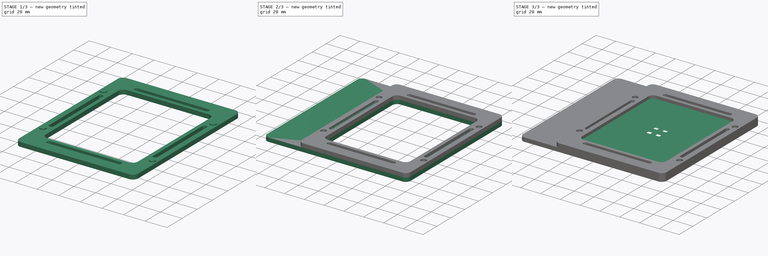
[diagram: build sequence overview — one tinted view per stage of 3, left to right]
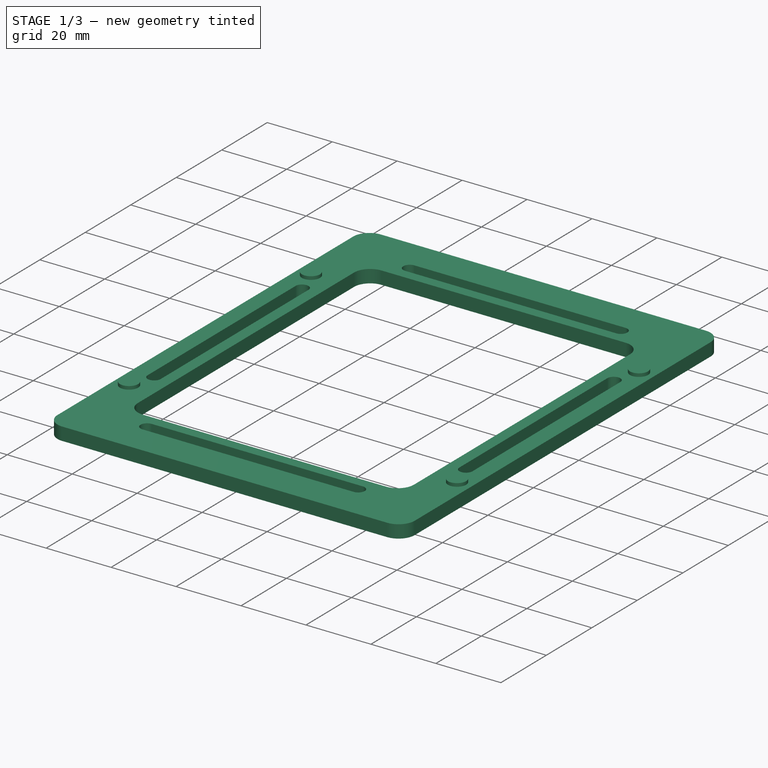
[diagram: stage 1 of 3 — iso view after this stage's code; geometry added in this stage tinted green]
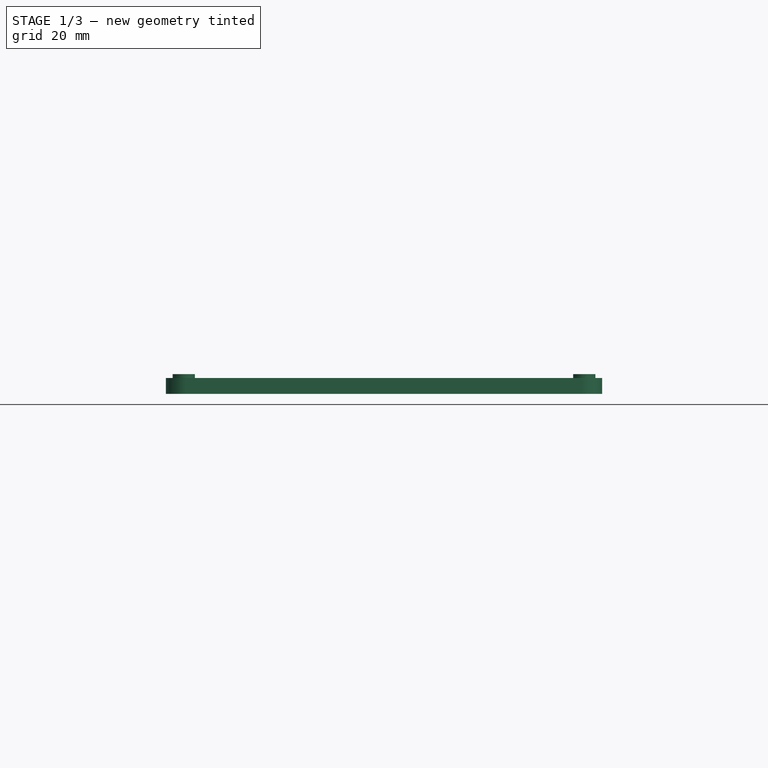
[diagram: stage 1 of 3 — front view after this stage's code; geometry added in this stage tinted green]
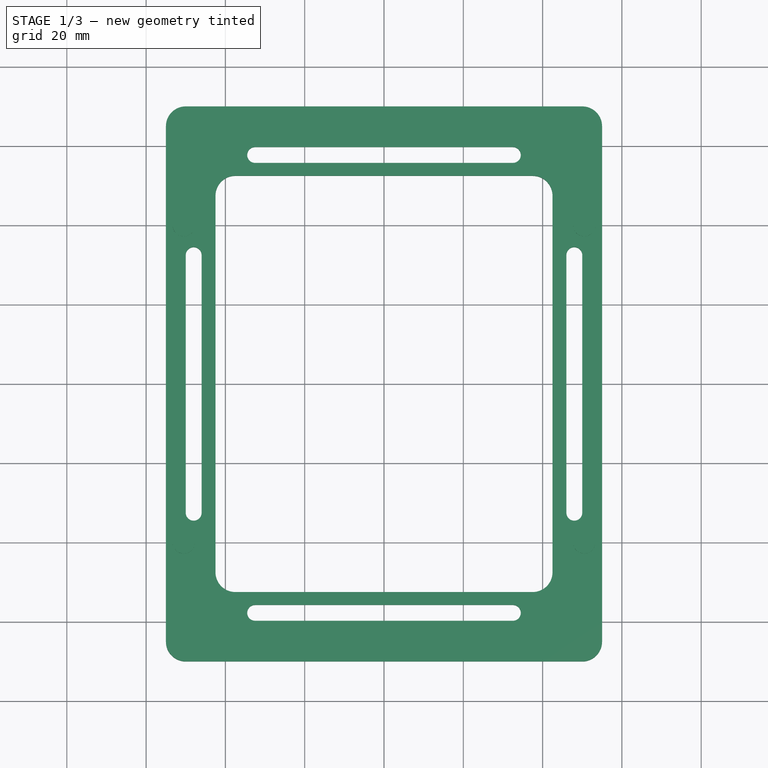
[diagram: stage 1 of 3 — top view after this stage's code; geometry added in this stage tinted green]
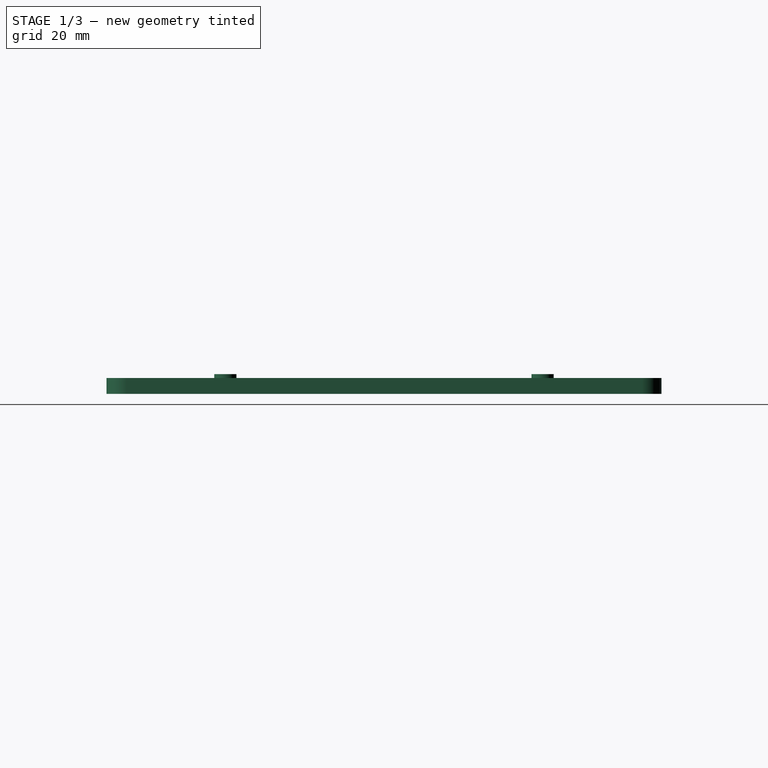
[diagram: stage 1 of 3 — right view after this stage's code; geometry added in this stage tinted green]
FCSTD DOCUMENT  (FreeCAD 0.17R13190 (Git))
Label: frame-v5.1
License: All rights reserved
LicenseURL: http://en.wikipedia.org/wiki/All_rights_reserved
objects: Sketcher::SketchObject×5, Part::Extrusion×5, Part::MultiFuse×1, Part::Cut×1
note: 12 computed .brp shape members not serialized (recipe doc carries the construction recipe); baked Part::Feature solids carry a one-line shape summary decoded from their .brp

FEATURE [Sketcher::SketchObject] Sketch002
  sketch-geometry (28):
    g0: LineSegment [constr] StartX=-47.125 StartY=56.75 StartZ=0 EndX=47.125 EndY=56.75 EndZ=0
    g1: LineSegment [constr] StartX=47.125 StartY=56.75 StartZ=0 EndX=47.125 EndY=-56.75 EndZ=0
    g2: LineSegment [constr] StartX=47.125 StartY=-56.75 StartZ=0 EndX=-47.125 EndY=-56.75 EndZ=0
    g3: LineSegment [constr] StartX=-47.125 StartY=-56.75 StartZ=0 EndX=-47.125 EndY=56.75 EndZ=0
    g4: LineSegment [constr] StartX=49.625 StartY=32.5 StartZ=0 EndX=47.125 EndY=32.5 EndZ=0
    g5: LineSegment StartX=47.125 StartY=32.5 StartZ=0 EndX=47.125 EndY=-32.5 EndZ=0
    g6: LineSegment [constr] StartX=47.125 StartY=-32.5 StartZ=0 EndX=49.625 EndY=-32.5 EndZ=0
    g7: LineSegment StartX=49.625 StartY=-32.5 StartZ=0 EndX=49.625 EndY=32.5 EndZ=0
    g8: LineSegment [constr] StartX=-49.625 StartY=32.5 StartZ=0 EndX=-47.125 EndY=32.5 EndZ=0
    g9: LineSegment StartX=-47.125 StartY=32.5 StartZ=0 EndX=-47.125 EndY=-32.5 EndZ=0
    g10: LineSegment [constr] StartX=-47.125 StartY=-32.5 StartZ=0 EndX=-49.625 EndY=-32.5 EndZ=0
    g11: LineSegment StartX=-49.625 StartY=-32.5 StartZ=0 EndX=-49.625 EndY=32.5 EndZ=0
    g12: LineSegment StartX=-32.5 StartY=59.25 StartZ=0 EndX=32.5 EndY=59.25 EndZ=0
    g13: LineSegment [constr] StartX=32.5 StartY=59.25 StartZ=0 EndX=32.5 EndY=56.75 EndZ=0
    g14: LineSegment StartX=32.5 StartY=56.75 StartZ=0 EndX=-32.5 EndY=56.75 EndZ=0
    g15: LineSegment [constr] StartX=-32.5 StartY=56.75 StartZ=0 EndX=-32.5 EndY=59.25 EndZ=0
    g16: LineSegment StartX=-32.5 StartY=-56.75 StartZ=0 EndX=32.5 EndY=-56.75 EndZ=0
    g17: LineSegment [constr] StartX=32.5 StartY=-56.75 StartZ=0 EndX=32.5 EndY=-59.25 EndZ=0
    g18: LineSegment StartX=32.5 StartY=-59.25 StartZ=0 EndX=-32.5 EndY=-59.25 EndZ=0
    g19: LineSegment [constr] StartX=-32.5 StartY=-59.25 StartZ=0 EndX=-32.5 EndY=-56.75 EndZ=0
    g20: ArcOfCircle CenterX=-32.5 CenterY=-58 CenterZ=0 NormalX=0 NormalY=0 NormalZ=1 AngleXU=0 Radius=1.25 StartAngle=1.5708 EndAngle=4.71239
    g21: ArcOfCircle CenterX=32.5 CenterY=-58 CenterZ=0 NormalX=0 NormalY=0 NormalZ=1 AngleXU=0 Radius=1.25 StartAngle=4.71239 EndAngle=7.85398
    g22: ArcOfCircle CenterX=-48.375 CenterY=32.5 CenterZ=0 NormalX=0 NormalY=0 NormalZ=1 AngleXU=0 Radius=1.25 StartAngle=0 EndAngle=3.14159
    g23: ArcOfCircle CenterX=-48.375 CenterY=-32.5 CenterZ=0 NormalX=0 NormalY=0 NormalZ=1 AngleXU=0 Radius=1.25 StartAngle=3.14159 EndAngle=6.28319
    g24: ArcOfCircle CenterX=-32.5 CenterY=58 CenterZ=0 NormalX=0 NormalY=0 NormalZ=1 AngleXU=0 Radius=1.25 StartAngle=1.5708 EndAngle=4.71239
    g25: ArcOfCircle CenterX=32.5 CenterY=58 CenterZ=0 NormalX=0 NormalY=0 NormalZ=1 AngleXU=0 Radius=1.25 StartAngle=4.71239 EndAngle=7.85398
    g26: ArcOfCircle CenterX=48.375 CenterY=32.5 CenterZ=0 NormalX=0 NormalY=0 NormalZ=1 AngleXU=0 Radius=1.25 StartAngle=0 EndAngle=3.14159
    g27: ArcOfCircle CenterX=48.375 CenterY=-32.5 CenterZ=0 NormalX=0 NormalY=0 NormalZ=1 AngleXU=0 Radius=1.25 StartAngle=3.14159 EndAngle=6.28319
  constraints (84):
    c: Horizontal(g0)
    c: Horizontal(g2)
    c: Vertical(g1)
    c: Vertical(g3)
    c: DistanceY(g2,g0) = 113.5
    c: DistanceX(g3,g1) = 94.25
    c: Symmetric(g0,g0,g-2)
    c: Symmetric(g3,g3,g-1)
    c: Coincident(g2,g1)
    c: Coincident(g3,g2)
    c: Coincident(g3,g0)
    c: Coincident(g0,g1)
    c: Coincident(g4,g5)
    c: Coincident(g5,g6)
    c: Coincident(g6,g7)
    c: Coincident(g7,g4)
    c: Horizontal(g4)
    c: Horizontal(g6)
    c: Vertical(g5)
    c: Vertical(g7)
    c: Coincident(g8,g9)
    c: Coincident(g9,g10)
    c: Coincident(g10,g11)
    c: Coincident(g11,g8)
    c: Horizontal(g8)
    c: Horizontal(g10)
    c: Vertical(g9)
    c: Vertical(g11)
    c: Coincident(g12,g13)
    c: Coincident(g13,g14)
    c: Coincident(g14,g15)
    c: Coincident(g15,g12)
    c: Horizontal(g12)
    c: Horizontal(g14)
    c: Vertical(g13)
    c: Vertical(g15)
    c: Coincident(g16,g17)
    c: Coincident(g17,g18)
    c: Coincident(g18,g19)
    c: Coincident(g19,g16)
    c: Horizontal(g16)
    c: Horizontal(g18)
    c: Vertical(g17)
    c: Vertical(g19)
    c: Equal(g9,g14)
    c: Equal(g14,g5)
    c: Equal(g5,g16)
    c: Equal(g8,g13)
    c: Equal(g13,g6)
    c: Equal(g6,g19)
    c: DistanceY(g7,g7) = 65
    c: DistanceX(g6,g6) = 2.5
    c: PointOnObject(g4,g1)
    c: PointOnObject(g16,g2)
    c: PointOnObject(g8,g3)
    c: PointOnObject(g14,g0)
    c: Symmetric(g12,g12,g-2)
    c: Symmetric(g4,g6,g-1)
    c: Symmetric(g17,g18,g-2)
    c: Symmetric(g8,g10,g-1)
    c: PointOnObject(g20,g19)
    c: Coincident(g20,g16)
    c: Coincident(g20,g18)
    c: PointOnObject(g21,g17)
    c: Coincident(g21,g16)
    c: Coincident(g21,g17)
    c: PointOnObject(g22,g8)
    c: Coincident(g22,g8)
    c: Coincident(g22,g8)
    c: PointOnObject(g23,g10)
    c: Coincident(g23,g10)
    c: Coincident(g23,g9)
    c: PointOnObject(g24,g15)
    c: Coincident(g24,g12)
    c: Coincident(g24,g14)
    c: PointOnObject(g25,g13)
    c: Coincident(g25,g12)
    c: Coincident(g25,g13)
    c: PointOnObject(g26,g4)
    c: Coincident(g26,g4)
    c: Coincident(g26,g4)
    c: PointOnObject(g27,g6)
    c: Coincident(g27,g5)
    c: Coincident(g27,g6)
FEATURE [Sketcher::SketchObject] Sketch003
  sketch-geometry (44):
    g0: LineSegment StartX=-37.5 StartY=52.5 StartZ=0 EndX=37.5 EndY=52.5 EndZ=0
    g1: LineSegment StartX=42.5 StartY=47.5 StartZ=0 EndX=42.5 EndY=-47.5 EndZ=0
    g2: LineSegment StartX=37.5 StartY=-52.5 StartZ=0 EndX=-37.5 EndY=-52.5 EndZ=0
    g3: LineSegment StartX=-42.5 StartY=-47.5 StartZ=0 EndX=-42.5 EndY=47.5 EndZ=0
    g4: ArcOfCircle CenterX=-37.5 CenterY=-47.5 CenterZ=0 NormalX=0 NormalY=0 NormalZ=1 AngleXU=0 Radius=5 StartAngle=3.14159 EndAngle=4.71239
    g5: ArcOfCircle CenterX=37.5 CenterY=-47.5 CenterZ=0 NormalX=0 NormalY=0 NormalZ=1 AngleXU=0 Radius=5 StartAngle=4.71239 EndAngle=6.28319
    g6: ArcOfCircle CenterX=37.5 CenterY=47.5 CenterZ=0 NormalX=0 NormalY=0 NormalZ=1 AngleXU=0 Radius=5 StartAngle=0 EndAngle=1.5708
    g7: ArcOfCircle CenterX=-37.5 CenterY=47.5 CenterZ=0 NormalX=0 NormalY=0 NormalZ=1 AngleXU=0 Radius=5 StartAngle=1.5708 EndAngle=3.14159
    g8: LineSegment StartX=-50 StartY=70 StartZ=0 EndX=50 EndY=70 EndZ=0
    g9: LineSegment StartX=55 StartY=65 StartZ=0 EndX=55 EndY=-65 EndZ=0
    g10: LineSegment StartX=50 StartY=-70 StartZ=0 EndX=-50 EndY=-70 EndZ=0
    g11: LineSegment StartX=-55 StartY=-65 StartZ=0 EndX=-55 EndY=65 EndZ=0
    g12: ArcOfCircle CenterX=-50 CenterY=-65 CenterZ=0 NormalX=0 NormalY=0 NormalZ=1 AngleXU=0 Radius=5 StartAngle=3.14159 EndAngle=4.71239
    g13: ArcOfCircle CenterX=50 CenterY=-65 CenterZ=0 NormalX=0 NormalY=0 NormalZ=1 AngleXU=0 Radius=5 StartAngle=4.71239 EndAngle=6.28319
    g14: ArcOfCircle CenterX=50 CenterY=65 CenterZ=0 NormalX=0 NormalY=0 NormalZ=1 AngleXU=0 Radius=5 StartAngle=0 EndAngle=1.5708
    g15: ArcOfCircle CenterX=-50 CenterY=65 CenterZ=0 NormalX=0 NormalY=0 NormalZ=1 AngleXU=0 Radius=5 StartAngle=1.5708 EndAngle=3.14159
    g16: LineSegment [constr] StartX=-50.5 StartY=40 StartZ=0 EndX=50.5 EndY=40 EndZ=0
    g17: LineSegment [constr] StartX=50.5 StartY=40 StartZ=0 EndX=50.5 EndY=-40 EndZ=0
    g18: LineSegment [constr] StartX=50.5 StartY=-40 StartZ=0 EndX=-50.5 EndY=-40 EndZ=0
    g19: LineSegment [constr] StartX=-50.5 StartY=-40 StartZ=0 EndX=-50.5 EndY=40 EndZ=0
    g20: Circle CenterX=-50.5 CenterY=40 CenterZ=0 NormalX=0 NormalY=0 NormalZ=1 AngleXU=0 Radius=1.8
    g21: Circle CenterX=50.5 CenterY=-40 CenterZ=0 NormalX=0 NormalY=0 NormalZ=1 AngleXU=0 Radius=1.8
    g22: Circle CenterX=-50.5 CenterY=-40 CenterZ=0 NormalX=0 NormalY=0 NormalZ=1 AngleXU=0 Radius=1.8
    g23: Circle CenterX=50.5 CenterY=40 CenterZ=0 NormalX=0 NormalY=0 NormalZ=1 AngleXU=0 Radius=1.8
    g24: LineSegment [constr] StartX=-48 StartY=57.75 StartZ=0 EndX=48 EndY=57.75 EndZ=0
    g25: LineSegment [constr] StartX=48 StartY=57.75 StartZ=0 EndX=48 EndY=-57.75 EndZ=0
    g26: LineSegment [constr] StartX=48 StartY=-57.75 StartZ=0 EndX=-48 EndY=-57.75 EndZ=0
    g27: LineSegment [constr] StartX=-48 StartY=-57.75 StartZ=0 EndX=-48 EndY=57.75 EndZ=0
    g28: ArcOfCircle CenterX=-48 CenterY=32.5 CenterZ=0 NormalX=0 NormalY=0 NormalZ=1 AngleXU=0 Radius=2 StartAngle=0 EndAngle=3.14159
    g29: ArcOfCircle CenterX=-48 CenterY=-32.5 CenterZ=0 NormalX=0 NormalY=0 NormalZ=1 AngleXU=0 Radius=2 StartAngle=3.14159 EndAngle=6.28319
    g30: LineSegment StartX=-50 StartY=32.5 StartZ=0 EndX=-50 EndY=-32.5 EndZ=0
    g31: LineSegment StartX=-46 StartY=32.5 StartZ=0 EndX=-46 EndY=-32.5 EndZ=0
    g32: ArcOfCircle CenterX=-32.5 CenterY=-57.75 CenterZ=0 NormalX=0 NormalY=0 NormalZ=1 AngleXU=0 Radius=2 StartAngle=1.5708 EndAngle=4.71239
    g33: ArcOfCircle CenterX=32.5 CenterY=-57.75 CenterZ=0 NormalX=0 NormalY=0 NormalZ=1 AngleXU=0 Radius=2 StartAngle=4.71239 EndAngle=7.85398
    g34: LineSegment StartX=-32.5 StartY=-59.75 StartZ=0 EndX=32.5 EndY=-59.75 EndZ=0
    g35: LineSegment StartX=-32.5 StartY=-55.75 StartZ=0 EndX=32.5 EndY=-55.75 EndZ=0
    g36: ArcOfCircle CenterX=48 CenterY=32.5 CenterZ=0 NormalX=0 NormalY=0 NormalZ=1 AngleXU=0 Radius=2 StartAngle=0 EndAngle=3.14159
    g37: ArcOfCircle CenterX=48 CenterY=-32.5 CenterZ=0 NormalX=0 NormalY=0 NormalZ=1 AngleXU=0 Radius=2 StartAngle=3.14159 EndAngle=6.28319
    g38: LineSegment StartX=46 StartY=32.5 StartZ=0 EndX=46 EndY=-32.5 EndZ=0
    g39: LineSegment StartX=50 StartY=32.5 StartZ=0 EndX=50 EndY=-32.5 EndZ=0
    g40: ArcOfCircle CenterX=-32.5 CenterY=57.75 CenterZ=0 NormalX=0 NormalY=0 NormalZ=1 AngleXU=0 Radius=2 StartAngle=1.5708 EndAngle=4.71239
    g41: ArcOfCircle CenterX=32.5 CenterY=57.75 CenterZ=0 NormalX=0 NormalY=0 NormalZ=1 AngleXU=0 Radius=2 StartAngle=4.71239 EndAngle=7.85398
    g42: LineSegment StartX=-32.5 StartY=55.75 StartZ=0 EndX=32.5 EndY=55.75 EndZ=0
    g43: LineSegment StartX=-32.5 StartY=59.75 StartZ=0 EndX=32.5 EndY=59.75 EndZ=0
  constraints (112):
    c: Horizontal(g0)
    c: Horizontal(g2)
    c: Vertical(g1)
    c: Vertical(g3)
    c: Tangent(g3,g4) = 1.5708
    c: Tangent(g2,g4) = 1.5708
    c: Tangent(g2,g5) = 1.5708
    c: Tangent(g1,g5) = 1.5708
    c: Tangent(g0,g6) = 1.5708
    c: Tangent(g1,g6) = 1.5708
    c: Tangent(g3,g7) = 1.5708
    c: Tangent(g0,g7) = 1.5708
    c: Equal(g7,g6)
    c: Equal(g6,g5)
    c: Equal(g5,g4)
    c: Radius(g6) = 5
    c: DistanceY(g2,g0) = 105
    c: DistanceX(g3,g1) = 85
    c: Symmetric(g0,g0,g-2)
    c: Symmetric(g3,g3,g-1)
    c: Horizontal(g8)
    c: Horizontal(g10)
    c: Vertical(g9)
    c: Vertical(g11)
    c: Tangent(g11,g12) = 1.5708
    c: Tangent(g10,g12) = 1.5708
    c: Tangent(g10,g13) = 1.5708
    c: Tangent(g9,g13) = 1.5708
    c: Tangent(g8,g14) = 1.5708
    c: Tangent(g9,g14) = 1.5708
    c: Tangent(g11,g15) = 1.5708
    c: Tangent(g8,g15) = 1.5708
    c: Equal(g15,g14)
    c: Equal(g14,g13)
    c: Equal(g13,g12)
    c: Equal(g6,g14) = 5
    c: DistanceY(g10,g8) = 140
    c: Symmetric(g11,g11,g-1)
    c: Coincident(g17,g18)
    c: Coincident(g19,g16)
    c: Horizontal(g16)
    c: Horizontal(g18)
    c: Vertical(g17)
    c: Vertical(g19)
    c: Coincident(g20,g16)
    c: Coincident(g17,g16)
    c: Coincident(g21,g17)
    c: Coincident(g19,g18)
    c: Coincident(g22,g18)
    c: Coincident(g23,g16)
    c: Radius(g23) = 1.8
    c: Equal(g23,g20)
    c: Equal(g23,g21)
    c: Equal(g23,g22)
    c: Symmetric(g16,g16,g-2)
    c: Symmetric(g16,g18,g-1)
    c: DistanceY(g19,g19) = 80
    c: DistanceX(g16,g16) = 101
    c: Coincident(g24,g25)
    c: Coincident(g25,g26)
    c: Coincident(g26,g27)
    c: Coincident(g27,g24)
    c: Horizontal(g24)
    c: Horizontal(g26)
    c: Vertical(g25)
    c: Vertical(g27)
    c: Symmetric(g26,g25,g-2)
    c: Symmetric(g24,g26,g-1)
    c: DistanceX(g26,g26) = 96
    c: DistanceY(g27,g27) = 115.5
    c: Tangent(g28,g31) = 1.5708
    c: Tangent(g28,g30) = -1.5708
    c: Tangent(g30,g29) = -1.5708
    c: Tangent(g31,g29) = 1.5708
    c: Vertical(g30)
    c: Equal(g28,g29)
    c: Tangent(g32,g35) = 1.5708
    c: Tangent(g32,g34) = -1.5708
    c: Tangent(g34,g33) = -1.5708
    c: Tangent(g35,g33) = 1.5708
    c: Horizontal(g34)
    c: Equal(g32,g33)
    c: PointOnObject(g32,g26)
    c: Tangent(g36,g39) = 1.5708
    c: Tangent(g36,g38) = -1.5708
    c: Tangent(g38,g37) = -1.5708
    c: Tangent(g39,g37) = 1.5708
    c: Vertical(g38)
    c: Equal(g36,g37)
    c: PointOnObject(g36,g25)
    c: Tangent(g40,g43) = 1.5708
    c: Tangent(g40,g42) = -1.5708
    c: Tangent(g42,g41) = -1.5708
    c: Tangent(g43,g41) = 1.5708
    c: Horizontal(g42)
    c: Equal(g40,g41)
    c: PointOnObject(g40,g24)
    c: Equal(g31,g42)
    c: Equal(g42,g38)
    c: Equal(g38,g35)
    c: Radius(g29) = 2
    c: Equal(g29,g33)
    c: Equal(g29,g37)
    c: Equal(g29,g40)
    c: Symmetric(g40,g41,g-2)
    c: Symmetric(g36,g37,g-1)
    c: Symmetric(g32,g33,g-2)
    c: Symmetric(g28,g29,g-1)
    c: DistanceY(g30,g30) = 65
    c: PointOnObject(g28,g27)
    c: DistanceX(g-1,g9) = 55
    c: DistanceX(g11,g-1) = 55
FEATURE [Part::Extrusion] Extrude003
  Base = -> Sketch003
  Dir = (0,0,1)
  DirMode = 2
  FaceMakerClass = Part::FaceMakerBullseye
  LengthFwd = 4
  LengthRev = 0
  Placement = pos=(0,0,4) rot=(0,0,1;0rad)
  Solid = true
  Symmetric = false
FEATURE [Sketcher::SketchObject] Sketch004
  sketch-geometry (8):
    g0: LineSegment [constr] StartX=-50.5 StartY=40 StartZ=0 EndX=50.5 EndY=40 EndZ=0
    g1: LineSegment [constr] StartX=50.5 StartY=40 StartZ=0 EndX=50.5 EndY=-40 EndZ=0
    g2: LineSegment [constr] StartX=50.5 StartY=-40 StartZ=0 EndX=-50.5 EndY=-40 EndZ=0
    g3: LineSegment [constr] StartX=-50.5 StartY=-40 StartZ=0 EndX=-50.5 EndY=40 EndZ=0
    g4: Circle CenterX=-50.5 CenterY=40 CenterZ=0 NormalX=0 NormalY=0 NormalZ=1 AngleXU=0 Radius=2.8
    g5: Circle CenterX=50.5 CenterY=-40 CenterZ=0 NormalX=0 NormalY=0 NormalZ=1 AngleXU=0 Radius=2.8
    g6: Circle CenterX=-50.5 CenterY=-40 CenterZ=0 NormalX=0 NormalY=0 NormalZ=1 AngleXU=0 Radius=2.8
    g7: Circle CenterX=50.5 CenterY=40 CenterZ=0 NormalX=0 NormalY=0 NormalZ=1 AngleXU=0 Radius=2.8
  constraints (20):
    c: Coincident(g1,g2)
    c: Coincident(g3,g0)
    c: Horizontal(g0)
    c: Horizontal(g2)
    c: Vertical(g1)
    c: Vertical(g3)
    c: Coincident(g4,g0)
    c: Coincident(g1,g0)
    c: Coincident(g5,g1)
    c: Coincident(g3,g2)
    c: Coincident(g6,g2)
    c: Coincident(g7,g0)
    c: Radius(g7) = 2.8
    c: Equal(g7,g4)
    c: Equal(g7,g5)
    c: Equal(g7,g6)
    c: Symmetric(g0,g0,g-2)
    c: Symmetric(g0,g2,g-1)
    c: DistanceY(g3,g3) = 80
    c: DistanceX(g0,g0) = 101
FEATURE [Part::Extrusion] Extrude004
  Base = -> Sketch004
  Dir = (0,0,1)
  DirMode = 2
  FaceMakerClass = Part::FaceMakerBullseye
  LengthFwd = 3
  LengthRev = 0
  Placement = pos=(0,0,6) rot=(0,0,1;0rad)
  Solid = true
  Symmetric = false
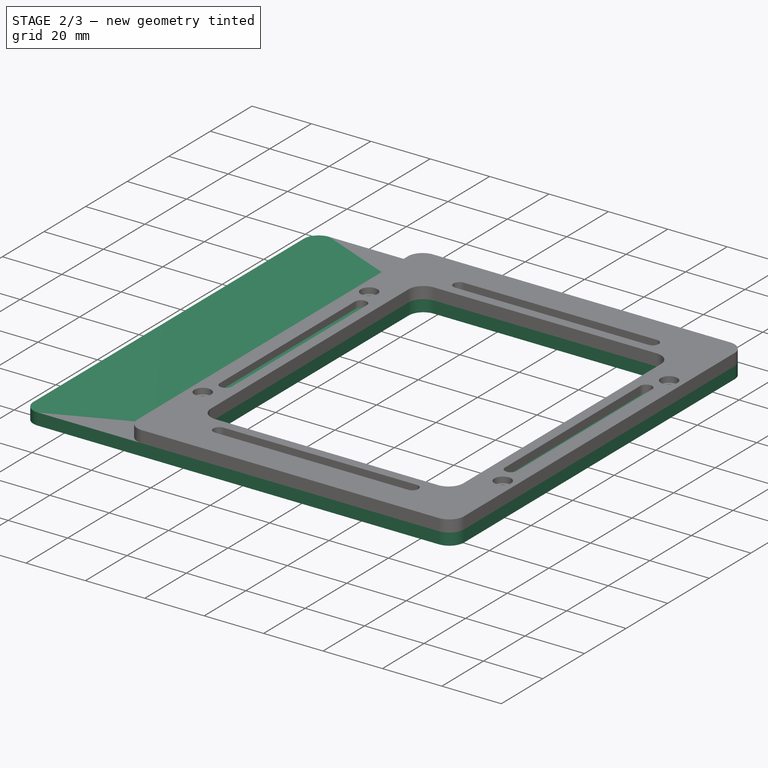
[diagram: stage 2 of 3 — iso view after this stage's code; geometry added in this stage tinted green]
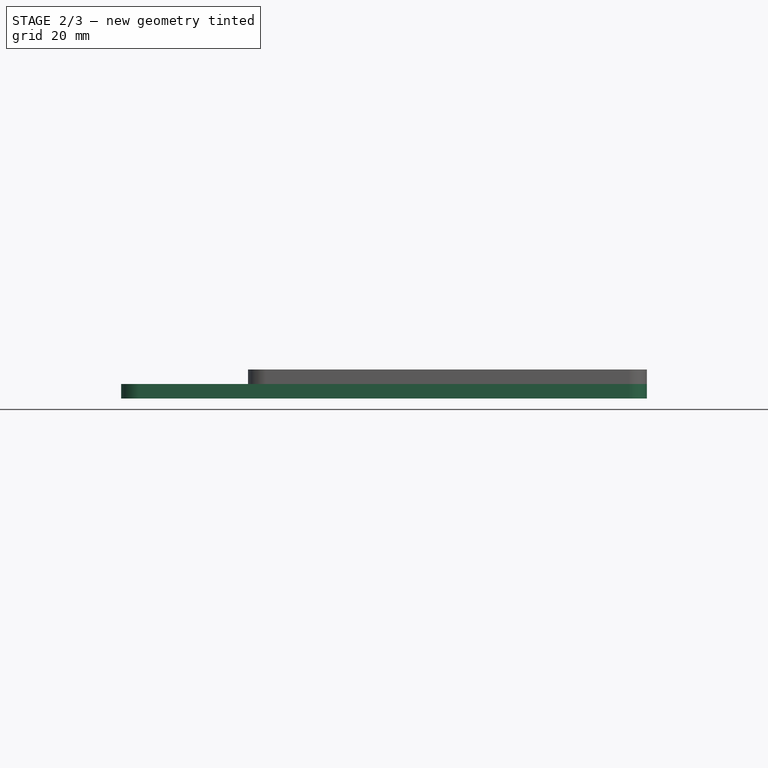
[diagram: stage 2 of 3 — front view after this stage's code; geometry added in this stage tinted green]
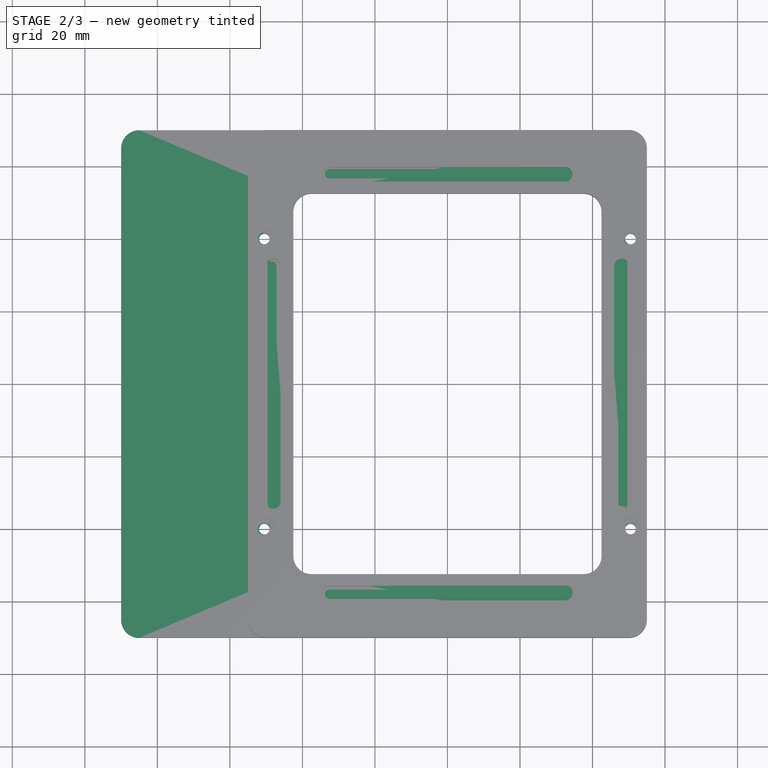
[diagram: stage 2 of 3 — top view after this stage's code; geometry added in this stage tinted green]
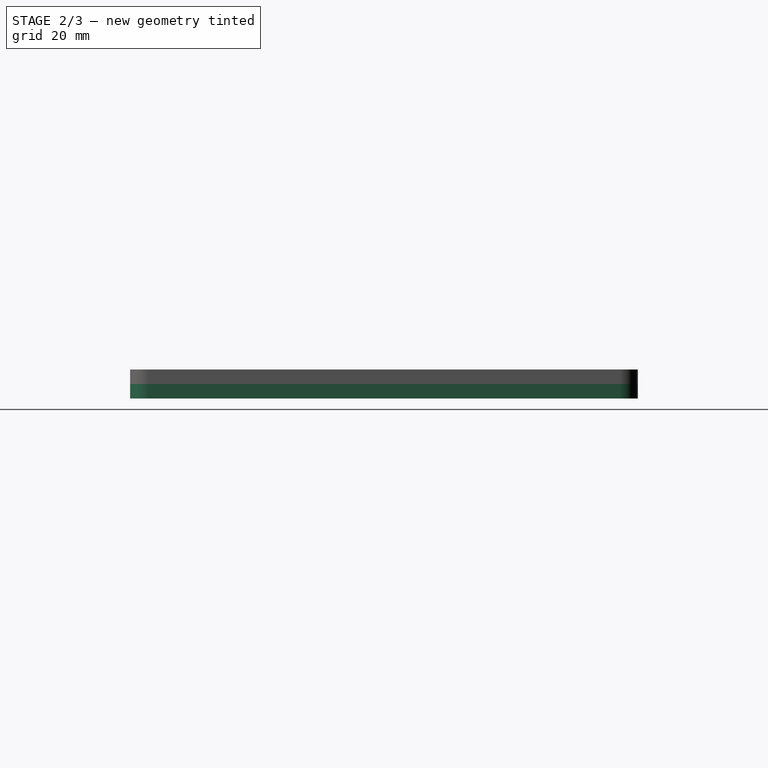
[diagram: stage 2 of 3 — right view after this stage's code; geometry added in this stage tinted green]
FEATURE [Sketcher::SketchObject] Sketch001
  sketch-geometry (24):
    g0: LineSegment StartX=-37.5 StartY=52.5 StartZ=0 EndX=37.5 EndY=52.5 EndZ=0
    g1: LineSegment StartX=42.5 StartY=47.5 StartZ=0 EndX=42.5 EndY=-47.5 EndZ=0
    g2: LineSegment StartX=37.5 StartY=-52.5 StartZ=0 EndX=-37.5 EndY=-52.5 EndZ=0
    g3: LineSegment StartX=-42.5 StartY=-47.5 StartZ=0 EndX=-42.5 EndY=47.5 EndZ=0
    g4: ArcOfCircle CenterX=-37.5 CenterY=-47.5 CenterZ=0 NormalX=0 NormalY=0 NormalZ=1 AngleXU=0 Radius=5 StartAngle=3.14159 EndAngle=4.71239
    g5: ArcOfCircle CenterX=37.5 CenterY=-47.5 CenterZ=0 NormalX=0 NormalY=0 NormalZ=1 AngleXU=0 Radius=5 StartAngle=4.71239 EndAngle=6.28319
    g6: ArcOfCircle CenterX=37.5 CenterY=47.5 CenterZ=0 NormalX=0 NormalY=0 NormalZ=1 AngleXU=0 Radius=5 StartAngle=0 EndAngle=1.5708
    g7: ArcOfCircle CenterX=-37.5 CenterY=47.5 CenterZ=0 NormalX=0 NormalY=0 NormalZ=1 AngleXU=0 Radius=5 StartAngle=1.5708 EndAngle=3.14159
    g8: LineSegment StartX=-85 StartY=70 StartZ=0 EndX=50 EndY=70 EndZ=0
    g9: LineSegment StartX=55 StartY=65 StartZ=0 EndX=55 EndY=-65 EndZ=0
    g10: LineSegment StartX=50 StartY=-70 StartZ=0 EndX=-85 EndY=-70 EndZ=0
    g11: LineSegment StartX=-90 StartY=-65 StartZ=0 EndX=-90 EndY=65 EndZ=0
    g12: ArcOfCircle CenterX=-85 CenterY=-65 CenterZ=0 NormalX=0 NormalY=0 NormalZ=1 AngleXU=0 Radius=5 StartAngle=3.14159 EndAngle=4.71239
    g13: ArcOfCircle CenterX=50 CenterY=-65 CenterZ=0 NormalX=0 NormalY=0 NormalZ=1 AngleXU=0 Radius=5 StartAngle=4.71239 EndAngle=6.28319
    g14: ArcOfCircle CenterX=50 CenterY=65 CenterZ=0 NormalX=0 NormalY=0 NormalZ=1 AngleXU=0 Radius=5 StartAngle=0 EndAngle=1.5708
    g15: ArcOfCircle CenterX=-85 CenterY=65 CenterZ=0 NormalX=0 NormalY=0 NormalZ=1 AngleXU=0 Radius=5 StartAngle=1.5708 EndAngle=3.14159
    g16: LineSegment [constr] StartX=-50.5 StartY=40 StartZ=0 EndX=50.5 EndY=40 EndZ=0
    g17: LineSegment [constr] StartX=50.5 StartY=40 StartZ=0 EndX=50.5 EndY=-40 EndZ=0
    g18: LineSegment [constr] StartX=50.5 StartY=-40 StartZ=0 EndX=-50.5 EndY=-40 EndZ=0
    g19: LineSegment [constr] StartX=-50.5 StartY=-40 StartZ=0 EndX=-50.5 EndY=40 EndZ=0
    g20: Circle CenterX=-50.5 CenterY=40 CenterZ=0 NormalX=0 NormalY=0 NormalZ=1 AngleXU=0 Radius=1.45
    g21: Circle CenterX=50.5 CenterY=-40 CenterZ=0 NormalX=0 NormalY=0 NormalZ=1 AngleXU=0 Radius=1.45
    g22: Circle CenterX=-50.5 CenterY=-40 CenterZ=0 NormalX=0 NormalY=0 NormalZ=1 AngleXU=0 Radius=1.45
    g23: Circle CenterX=50.5 CenterY=40 CenterZ=0 NormalX=0 NormalY=0 NormalZ=1 AngleXU=0 Radius=1.45
  constraints (60):
    c: Horizontal(g0)
    c: Horizontal(g2)
    c: Vertical(g1)
    c: Vertical(g3)
    c: Tangent(g3,g4) = 1.5708
    c: Tangent(g2,g4) = 1.5708
    c: Tangent(g2,g5) = 1.5708
    c: Tangent(g1,g5) = 1.5708
    c: Tangent(g0,g6) = 1.5708
    c: Tangent(g1,g6) = 1.5708
    c: Tangent(g3,g7) = 1.5708
    c: Tangent(g0,g7) = 1.5708
    c: Equal(g7,g6)
    c: Equal(g6,g5)
    c: Equal(g5,g4)
    c: Radius(g6) = 5
    c: DistanceY(g2,g0) = 105
    c: DistanceX(g3,g1) = 85
    c: Horizontal(g8)
    c: Horizontal(g10)
    c: Vertical(g9)
    c: Vertical(g11)
    c: Tangent(g11,g12) = 1.5708
    c: Tangent(g10,g12) = 1.5708
    c: Tangent(g10,g13) = 1.5708
    c: Tangent(g9,g13) = 1.5708
    c: Tangent(g8,g14) = 1.5708
    c: Tangent(g9,g14) = 1.5708
    c: Tangent(g11,g15) = 1.5708
    c: Tangent(g8,g15) = 1.5708
    c: Equal(g15,g14)
    c: Equal(g14,g13)
    c: Equal(g13,g12)
    c: Equal(g6,g14) = 5
    c: DistanceY(g10,g8) = 140
    c: Coincident(g17,g18)
    c: Coincident(g19,g16)
    c: Horizontal(g16)
    c: Horizontal(g18)
    c: Vertical(g17)
    c: Vertical(g19)
    c: Coincident(g20,g16)
    c: Coincident(g17,g16)
    c: Coincident(g21,g17)
    c: Coincident(g19,g18)
    c: Coincident(g22,g18)
    c: Coincident(g23,g16)
    c: Radius(g23) = 1.45
    c: Equal(g23,g20)
    c: Equal(g23,g21)
    c: Equal(g23,g22)
    c: Symmetric(g16,g16,g-2)
    c: Symmetric(g16,g18,g-1)
    c: DistanceY(g19,g19) = 80
    c: DistanceX(g16,g16) = 101
    c: Symmetric(g3,g3,g-1)
    c: Symmetric(g0,g0,g-2)
    c: Symmetric(g11,g11,g-1)
    c: DistanceX(g-1,g9) = 55
    c: DistanceX(g11,g-1) = 90
FEATURE [Part::Extrusion] Extrude001
  Base = -> Sketch001
  Dir = (0,0,1)
  DirMode = 2
  FaceMakerClass = Part::FaceMakerBullseye
  LengthFwd = 4
  LengthRev = 0
  Solid = true
  Symmetric = false
FEATURE [Part::Extrusion] Extrude005
  Base = -> Sketch002
  Dir = (0,0,1)
  DirMode = 2
  FaceMakerClass = Part::FaceMakerBullseye
  LengthFwd = 2
  LengthRev = 0
  Placement = pos=(0,0,4) rot=(0,0,1;0rad)
  Solid = true
  Symmetric = false
FEATURE [Part::Cut] Cut
  Base = -> Extrude003
  Tool = -> Extrude004
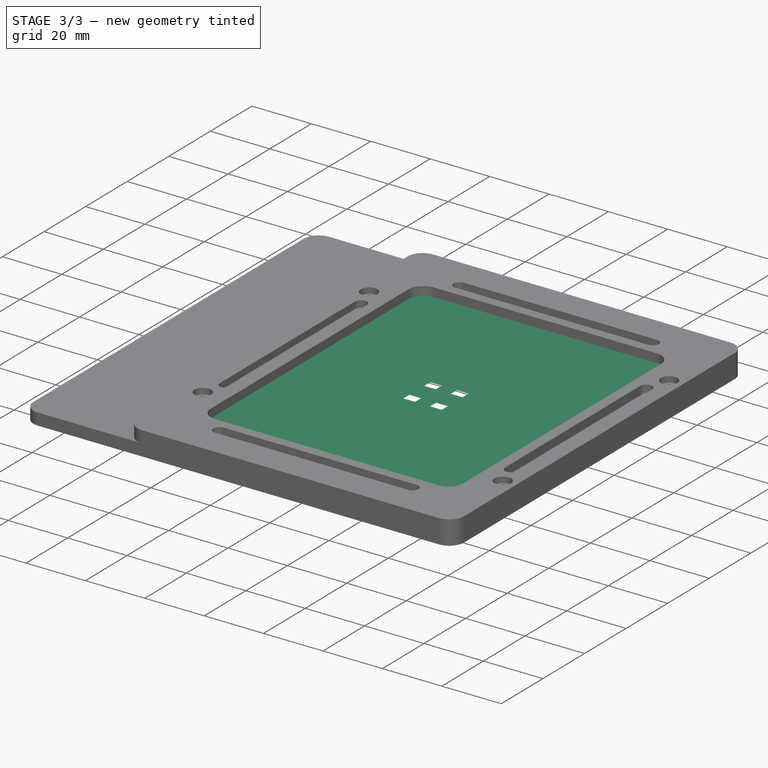
[diagram: stage 3 of 3 — iso view after this stage's code; geometry added in this stage tinted green]
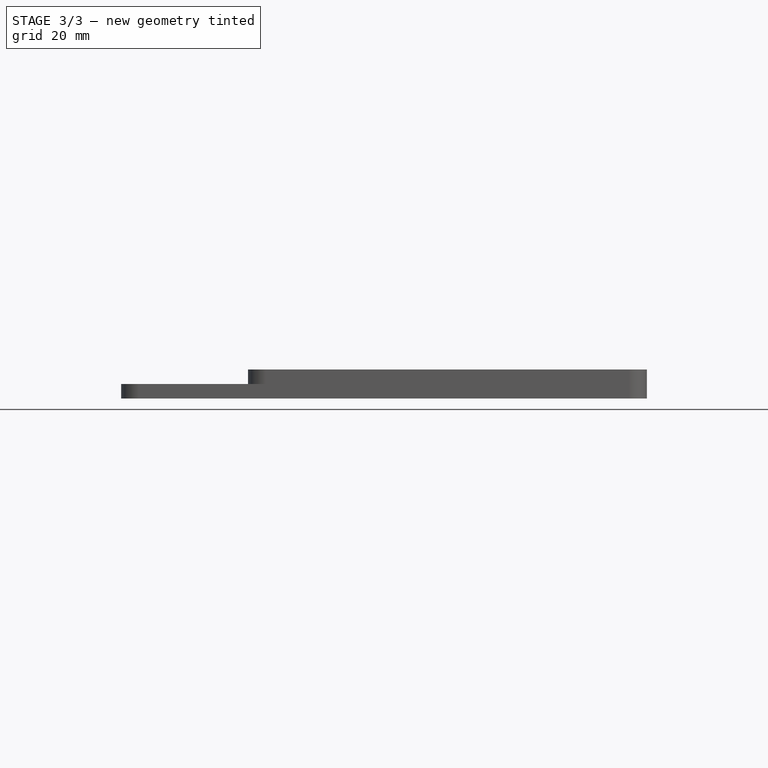
[diagram: stage 3 of 3 — front view after this stage's code; geometry added in this stage tinted green]
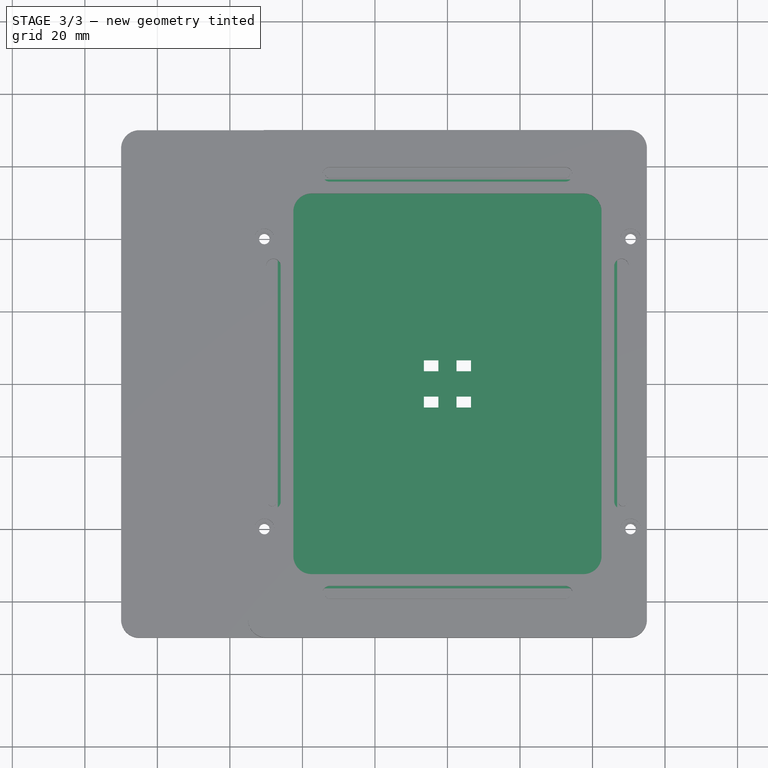
[diagram: stage 3 of 3 — top view after this stage's code; geometry added in this stage tinted green]
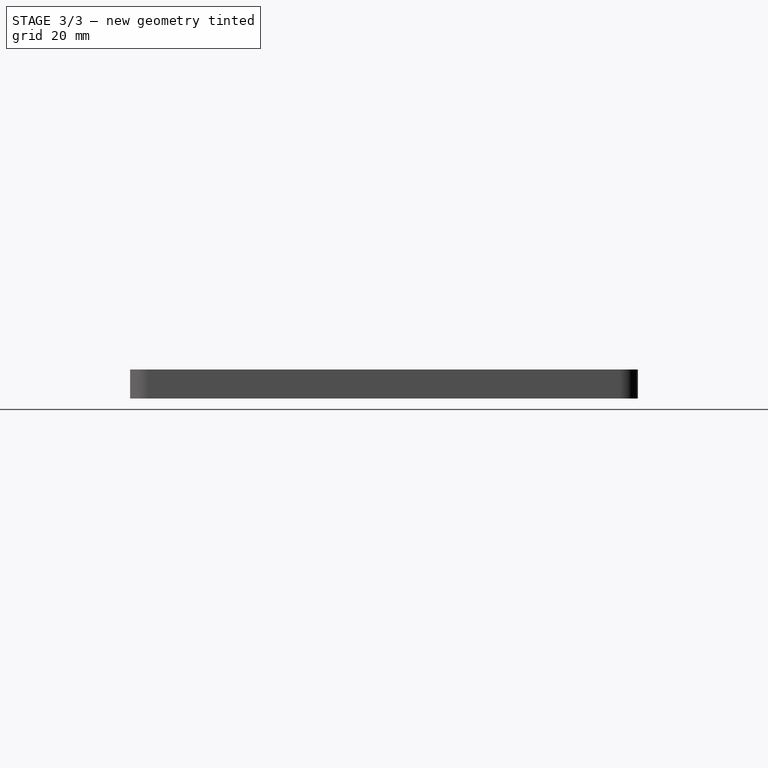
[diagram: stage 3 of 3 — right view after this stage's code; geometry added in this stage tinted green]
FEATURE [Sketcher::SketchObject] Sketch
  sketch-geometry (28):
    g0: LineSegment StartX=-41.8 StartY=56.4 StartZ=0 EndX=41.8 EndY=56.4 EndZ=0
    g1: LineSegment StartX=46.8 StartY=51.4 StartZ=0 EndX=46.8 EndY=-51.4 EndZ=0
    g2: LineSegment StartX=41.8 StartY=-56.4 StartZ=0 EndX=-41.8 EndY=-56.4 EndZ=0
    g3: LineSegment StartX=-46.8 StartY=-51.4 StartZ=0 EndX=-46.8 EndY=51.4 EndZ=0
    g4: ArcOfCircle CenterX=-41.8 CenterY=-51.4 CenterZ=0 NormalX=0 NormalY=0 NormalZ=1 AngleXU=0 Radius=5 StartAngle=3.14159 EndAngle=4.71239
    g5: ArcOfCircle CenterX=41.8 CenterY=-51.4 CenterZ=0 NormalX=0 NormalY=0 NormalZ=1 AngleXU=0 Radius=5 StartAngle=4.71239 EndAngle=6.28319
    g6: ArcOfCircle CenterX=41.8 CenterY=51.4 CenterZ=0 NormalX=0 NormalY=0 NormalZ=1 AngleXU=0 Radius=5 StartAngle=0 EndAngle=1.5708
    g7: ArcOfCircle CenterX=-41.8 CenterY=51.4 CenterZ=0 NormalX=0 NormalY=0 NormalZ=1 AngleXU=0 Radius=5 StartAngle=1.5708 EndAngle=3.14159
    g8: LineSegment StartX=-6.5 StartY=6.5 StartZ=0 EndX=-2.5 EndY=6.5 EndZ=0
    g9: LineSegment StartX=-2.5 StartY=6.5 StartZ=0 EndX=-2.5 EndY=3.5 EndZ=0
    g10: LineSegment StartX=-2.5 StartY=3.5 StartZ=0 EndX=-6.5 EndY=3.5 EndZ=0
    g11: LineSegment StartX=-6.5 StartY=3.5 StartZ=0 EndX=-6.5 EndY=6.5 EndZ=0
    g12: LineSegment StartX=2.5 StartY=6.5 StartZ=0 EndX=6.5 EndY=6.5 EndZ=0
    g13: LineSegment StartX=6.5 StartY=6.5 StartZ=0 EndX=6.5 EndY=3.5 EndZ=0
    g14: LineSegment StartX=6.5 StartY=3.5 StartZ=0 EndX=2.5 EndY=3.5 EndZ=0
    g15: LineSegment StartX=2.5 StartY=3.5 StartZ=0 EndX=2.5 EndY=6.5 EndZ=0
    g16: LineSegment StartX=-6.5 StartY=-3.5 StartZ=0 EndX=-2.5 EndY=-3.5 EndZ=0
    g17: LineSegment StartX=-2.5 StartY=-3.5 StartZ=0 EndX=-2.5 EndY=-6.5 EndZ=0
    g18: LineSegment StartX=-2.5 StartY=-6.5 StartZ=0 EndX=-6.5 EndY=-6.5 EndZ=0
    g19: LineSegment StartX=-6.5 StartY=-6.5 StartZ=0 EndX=-6.5 EndY=-3.5 EndZ=0
    g20: LineSegment StartX=2.5 StartY=-3.5 StartZ=0 EndX=6.5 EndY=-3.5 EndZ=0
    g21: LineSegment StartX=6.5 StartY=-3.5 StartZ=0 EndX=6.5 EndY=-6.5 EndZ=0
    g22: LineSegment StartX=6.5 StartY=-6.5 StartZ=0 EndX=2.5 EndY=-6.5 EndZ=0
    g23: LineSegment StartX=2.5 StartY=-6.5 StartZ=0 EndX=2.5 EndY=-3.5 EndZ=0
    g24: LineSegment [constr] StartX=-2.5 StartY=3.5 StartZ=0 EndX=2.5 EndY=3.5 EndZ=0
    g25: LineSegment [constr] StartX=2.5 StartY=3.5 StartZ=0 EndX=2.5 EndY=-3.5 EndZ=0
    g26: LineSegment [constr] StartX=2.5 StartY=-3.5 StartZ=0 EndX=-2.5 EndY=-3.5 EndZ=0
    g27: LineSegment [constr] StartX=-2.5 StartY=-3.5 StartZ=0 EndX=-2.5 EndY=3.5 EndZ=0
  constraints (76):
    c: Horizontal(g0)
    c: Horizontal(g2)
    c: Vertical(g1)
    c: Vertical(g3)
    c: Tangent(g3,g4) = 1.5708
    c: Tangent(g2,g4) = 1.5708
    c: Tangent(g2,g5) = 1.5708
    c: Tangent(g1,g5) = 1.5708
    c: Tangent(g0,g6) = 1.5708
    c: Tangent(g1,g6) = 1.5708
    c: Tangent(g3,g7) = 1.5708
    c: Tangent(g0,g7) = 1.5708
    c: Equal(g7,g6)
    c: Equal(g6,g5)
    c: Equal(g5,g4)
    c: Radius(g6) = 5
    c: DistanceY(g2,g0) = 112.8
    c: DistanceX(g3,g1) = 93.6
    c: Symmetric(g0,g0,g-2)
    c: Symmetric(g3,g3,g-1)
    c: Coincident(g8,g9)
    c: Coincident(g9,g10)
    c: Coincident(g10,g11)
    c: Coincident(g11,g8)
    c: Horizontal(g8)
    c: Horizontal(g10)
    c: Vertical(g9)
    c: Vertical(g11)
    c: Coincident(g12,g13)
    c: Coincident(g13,g14)
    c: Coincident(g14,g15)
    c: Coincident(g15,g12)
    c: Horizontal(g12)
    c: Horizontal(g14)
    c: Vertical(g13)
    c: Vertical(g15)
    c: Coincident(g16,g17)
    c: Coincident(g17,g18)
    c: Coincident(g18,g19)
    c: Coincident(g19,g16)
    c: Horizontal(g16)
    c: Horizontal(g18)
    c: Vertical(g17)
    c: Vertical(g19)
    c: Coincident(g20,g21)
    c: Coincident(g21,g22)
    c: Coincident(g22,g23)
    c: Coincident(g23,g20)
    c: Horizontal(g20)
    c: Horizontal(g22)
    c: Vertical(g21)
    c: Vertical(g23)
    c: Equal(g13,g21)
    c: Equal(g21,g17)
    c: Equal(g17,g9)
    c: Equal(g10,g14)
    c: Equal(g14,g22)
    c: Equal(g22,g18)
    c: DistanceY(g11,g11) = 3
    c: DistanceX(g8,g8) = 4
    c: Coincident(g9,g24)
    c: Horizontal(g24)
    c: Coincident(g24,g25)
    c: Vertical(g25)
    c: Coincident(g25,g26)
    c: Horizontal(g26)
    c: Coincident(g26,g27)
    c: Vertical(g27)
    c: Coincident(g27,g9)
    c: Coincident(g24,g14)
    c: Coincident(g16,g26)
    c: Coincident(g20,g25)
    c: Symmetric(g9,g14,g-2)
    c: Symmetric(g9,g16,g-1)
    c: DistanceY(g25,g25) = 7
    c: DistanceX(g26,g26) = 5
FEATURE [Part::Extrusion] Extrude
  Base = -> Sketch
  Dir = (0,0,1)
  DirMode = 2
  FaceMakerClass = Part::FaceMakerBullseye
  LengthFwd = 0.05
  LengthRev = 0
  Placement = pos=(0,0,5) rot=(0,0,1;0rad)
  Solid = true
  Symmetric = false
FEATURE [Part::MultiFuse] Fusion
  Shapes = -> [Extrude001,Extrude005]
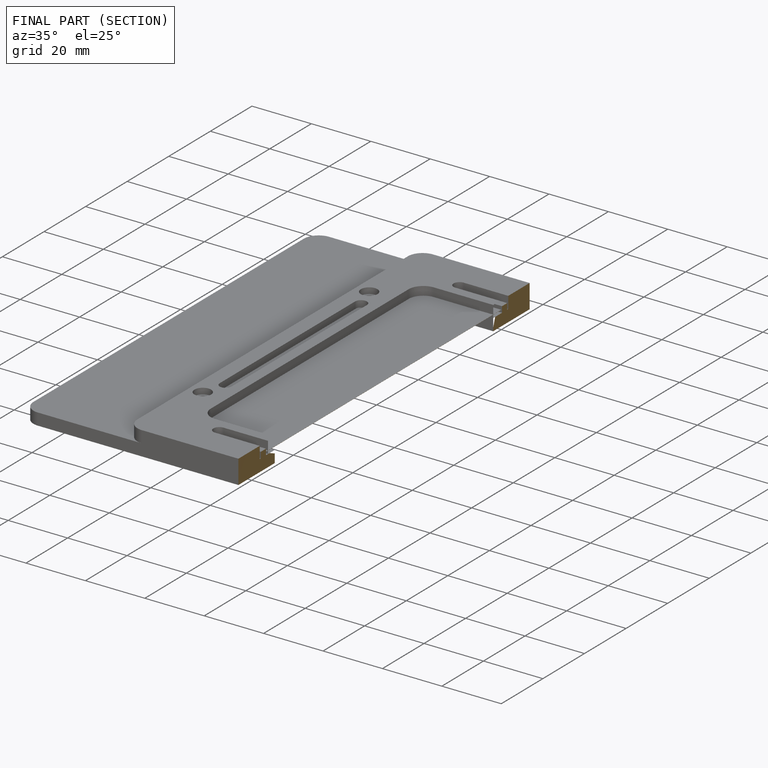
[diagram: finished part — half-section view (interior)]
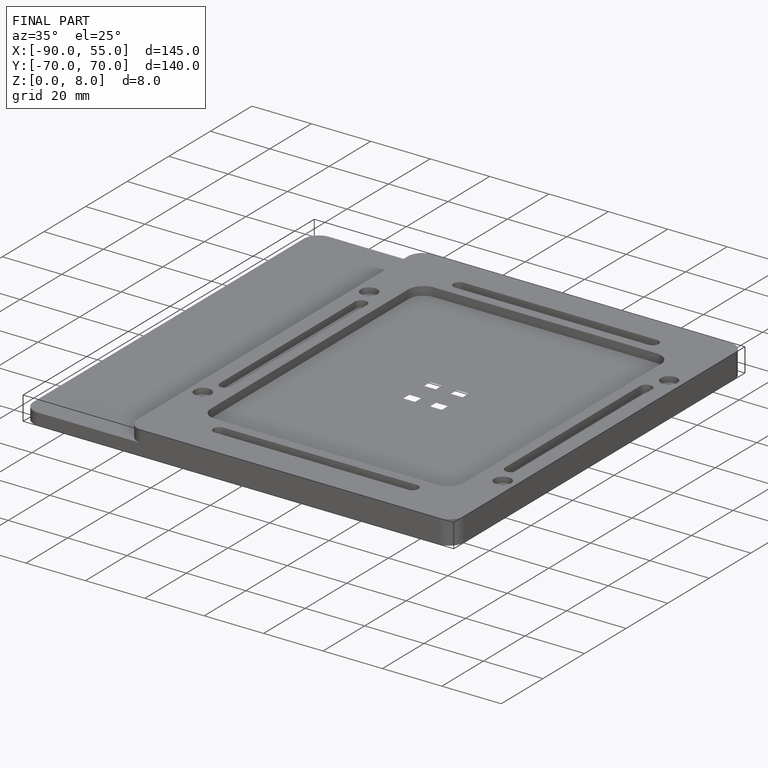
[diagram: finished part — iso view with bounding-box wireframe]
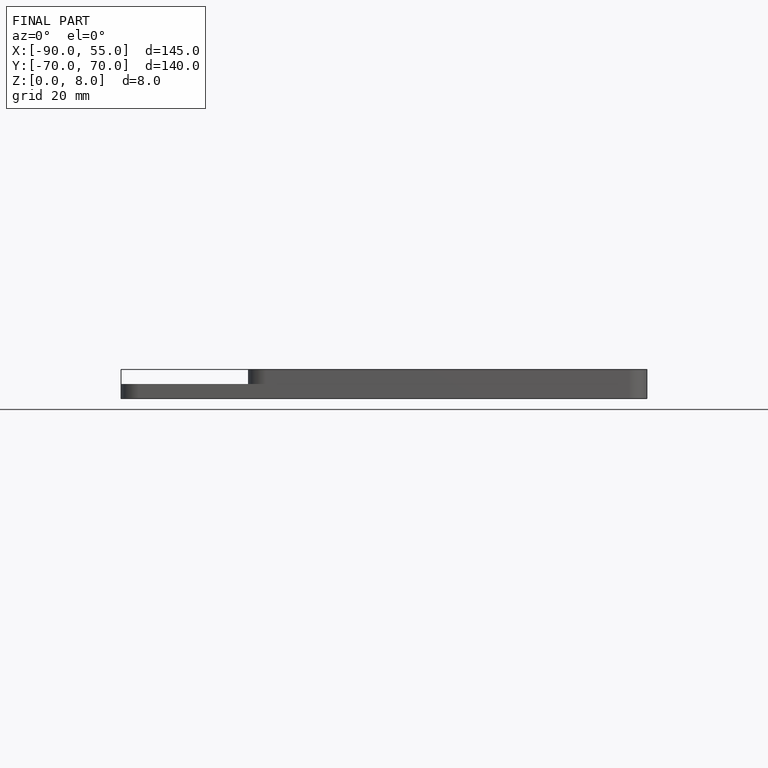
[diagram: finished part — front view with bounding-box wireframe]
